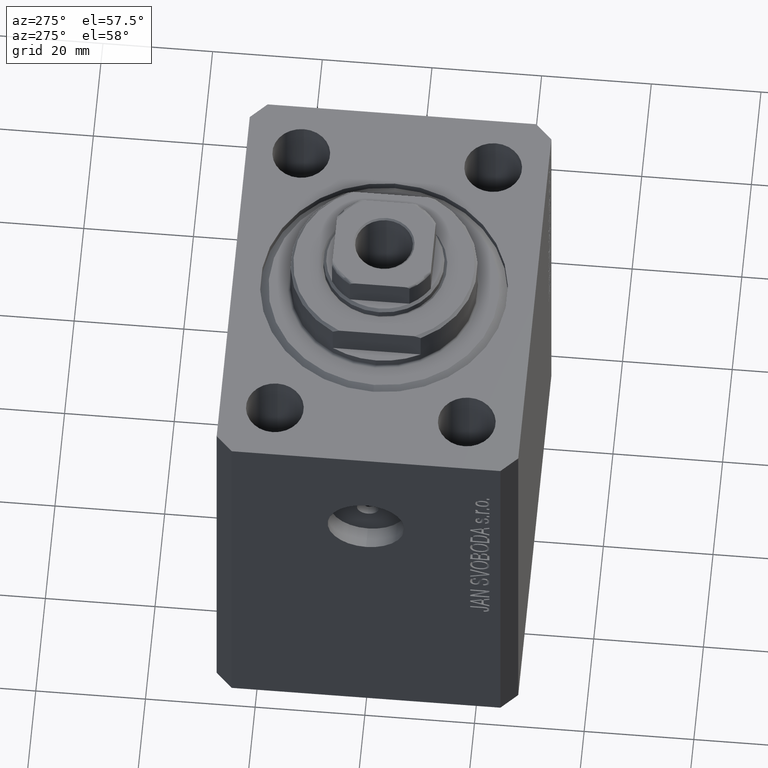
[diagram: clean part render]
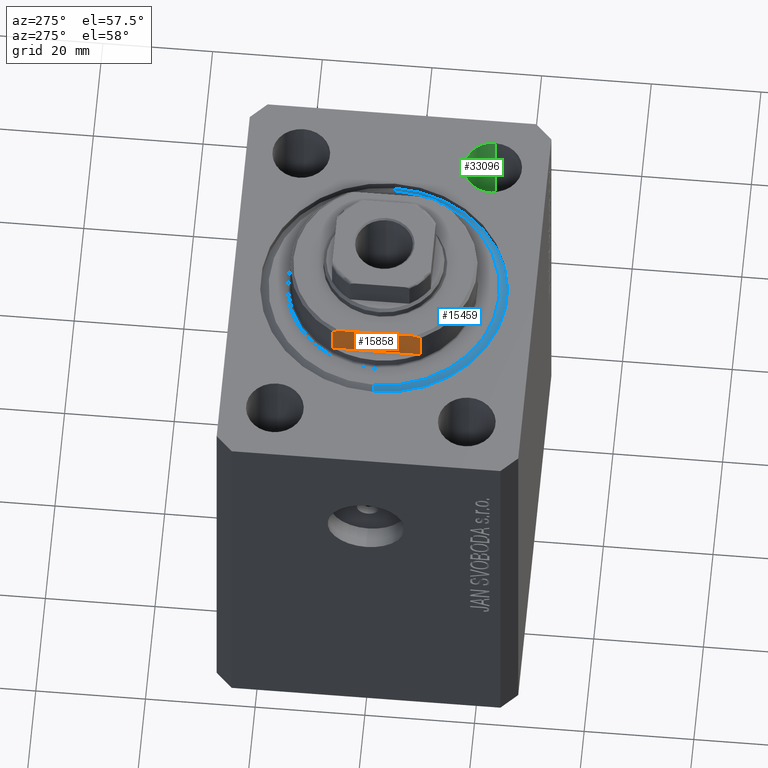
[diagram: same view with three faces highlighted in distinct colors, each labeled with its STEP entity id]
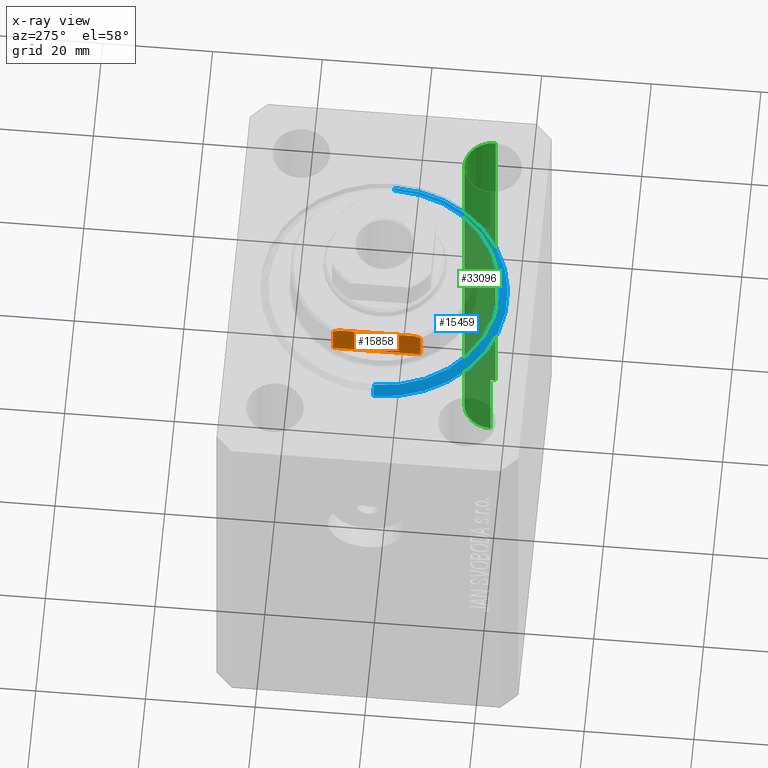
[diagram: x-ray of the same camera — body ghosted, the three highlighted faces saturated]
A machine part, auxiliary view with three faces highlighted in distinct colors.
The next image is the same camera in x-ray (body ghosted, the three faces saturated) — at least one of them is partly hidden behind the body in this view.
Their STEP definitions:

[orange] entity #15858 — the highlighted planar face has unit normal (-1, 0, 0).
#141 = CARTESIAN_POINT ( 'NONE',  ( 15.00000000000000000, 8.000000000000001776, -7.500000000000013323 ) ) ;
#179 = VERTEX_POINT ( 'NONE', #141 ) ;
#420 = CARTESIAN_POINT ( 'NONE',  ( 15.00000000000000000, 7.628315461082486593, -7.674910371255312391 ) ) ;
#977 = ORIENTED_EDGE ( 'NONE', *, *, #1656, .T. ) ;
#1656 = EDGE_CURVE ( 'NONE', #16343, #16949, #18860, .T. ) ;
#1791 = ORIENTED_EDGE ( 'NONE', *, *, #23207, .T. ) ;
#3189 = CARTESIAN_POINT ( 'NONE',  ( 15.00000000000000000, -7.629305121525818301, -7.674444648693746984 ) ) ;
#3849 = CARTESIAN_POINT ( 'NONE',  ( 15.00000000000000000, -8.000000000000001776, -7.500000000000013323 ) ) ;
#4587 = ORIENTED_EDGE ( 'NONE', *, *, #28101, .F. ) ;
#5342 = CARTESIAN_POINT ( 'NONE',  ( 14.99999999999999645, 6.873863542433781504, -8.000000000000000000 ) ) ;
#6887 = CARTESIAN_POINT ( 'NONE',  ( 15.00000000000000000, 8.000000000000001776, -8.000000000000000000 ) ) ;
#8330 = VECTOR ( 'NONE', #15443, 1000.000000000000000 ) ;
#9999 = CARTESIAN_POINT ( 'NONE',  ( 15.00000000000000000, -8.000000000000001776, -7.500000000000013323 ) ) ;
#11104 = B_SPLINE_CURVE_WITH_KNOTS ( 'NONE', 3,
 ( #20577, #420, #31643, #30761 ),
 .UNSPECIFIED., .F., .F.,
 ( 4, 4 ),
 ( 0.03336039268697044147, 0.03459498301323848946 ),
 .UNSPECIFIED. ) ;
#11271 = VERTEX_POINT ( 'NONE', #15265 ) ;
#12151 = LINE ( 'NONE', #32535, #37411 ) ;
#13092 = EDGE_CURVE ( 'NONE', #11271, #37322, #24025, .T. ) ;
#13605 = CARTESIAN_POINT ( 'NONE',  ( 14.99999999999999645, -6.873863542433781504, -8.000000000000000000 ) ) ;
#13620 = EDGE_CURVE ( 'NONE', #19787, #11271, #12151, .T. ) ;
#13740 = PLANE ( 'NONE',  #23748 ) ;
#14224 = EDGE_LOOP ( 'NONE', ( #1791, #977, #34429, #19730, #30660, #4587 ) ) ;
#15265 = CARTESIAN_POINT ( 'NONE',  ( 14.99999999999999645, -6.873863542433781504, -8.000000000000000000 ) ) ;
#15349 = CARTESIAN_POINT ( 'NONE',  ( 15.00000000000000000, -8.000000000000001776, -8.000000000000000000 ) ) ;
#15443 = DIRECTION ( 'NONE',  ( 0.000000000000000000, -1.000000000000000000, -0.000000000000000000 ) ) ;
#15858 = ADVANCED_FACE ( 'NONE', ( #27536 ), #13740, .T. ) ;
#16343 = VERTEX_POINT ( 'NONE', #24903 ) ;
#16949 = VERTEX_POINT ( 'NONE', #18868 ) ;
#18860 = LINE ( 'NONE', #33328, #8330 ) ;
#18868 = CARTESIAN_POINT ( 'NONE',  ( 14.99999999999999645, -8.000000000000003553, -2.000000000000000000 ) ) ;
#19730 = ORIENTED_EDGE ( 'NONE', *, *, #13092, .F. ) ;
#19787 = VERTEX_POINT ( 'NONE', #5342 ) ;
#20577 = CARTESIAN_POINT ( 'NONE',  ( 15.00000000000000000, 8.000000000000001776, -7.500000000000013323 ) ) ;
#22336 = DIRECTION ( 'NONE',  ( 0.000000000000000000, -1.000000000000000000, -0.000000000000000000 ) ) ;
#23207 = EDGE_CURVE ( 'NONE', #179, #16343, #37887, .T. ) ;
#23748 = AXIS2_PLACEMENT_3D ( 'NONE', #41320, #24133, #37939 ) ;
#24025 = B_SPLINE_CURVE_WITH_KNOTS ( 'NONE', 3,
 ( #13605, #40972, #3189, #9999 ),
 .UNSPECIFIED., .F., .F.,
 ( 4, 4 ),
 ( 0.04875332532859062012, 0.04998905627745663799 ),
 .UNSPECIFIED. ) ;
#24133 = DIRECTION ( 'NONE',  ( 1.000000000000000000, 0.000000000000000000, -0.000000000000000000 ) ) ;
#24903 = CARTESIAN_POINT ( 'NONE',  ( 14.99999999999999645, 8.000000000000003553, -2.000000000000000000 ) ) ;
#27536 = FACE_OUTER_BOUND ( 'NONE', #14224, .T. ) ;
#28101 = EDGE_CURVE ( 'NONE', #179, #19787, #11104, .T. ) ;
#30660 = ORIENTED_EDGE ( 'NONE', *, *, #13620, .F. ) ;
#30761 = CARTESIAN_POINT ( 'NONE',  ( 14.99999999999999645, 6.873863542433781504, -8.000000000000000000 ) ) ;
#31643 = CARTESIAN_POINT ( 'NONE',  ( 15.00000000000000000, 7.253126193285940104, -7.842000017654667587 ) ) ;
#32535 = CARTESIAN_POINT ( 'NONE',  ( 15.00000000000000000, -42.42640687119285303, -8.000000000000000000 ) ) ;
#33328 = CARTESIAN_POINT ( 'NONE',  ( 15.00000000000000000, -42.42640687119285303, -2.000000000000000000 ) ) ;
#34218 = EDGE_CURVE ( 'NONE', #16949, #37322, #42921, .T. ) ;
#34429 = ORIENTED_EDGE ( 'NONE', *, *, #34218, .T. ) ;
#34486 = DIRECTION ( 'NONE',  ( -0.000000000000000000, -0.000000000000000000, 1.000000000000000000 ) ) ;
#34660 = VECTOR ( 'NONE', #34486, 1000.000000000000000 ) ;
#37322 = VERTEX_POINT ( 'NONE', #3849 ) ;
#37411 = VECTOR ( 'NONE', #22336, 1000.000000000000000 ) ;
#37887 = LINE ( 'NONE', #6887, #34660 ) ;
#37939 = DIRECTION ( 'NONE',  ( -0.000000000000000000, 0.000000000000000000, -1.000000000000000000 ) ) ;
#40972 = CARTESIAN_POINT ( 'NONE',  ( 15.00000000000000000, -7.254193676168139149, -7.841555306644512058 ) ) ;
#41320 = CARTESIAN_POINT ( 'NONE',  ( 15.00000000000000000, -42.42640687119285303, -2.000000000000000000 ) ) ;
#42921 = LINE ( 'NONE', #15349, #43800 ) ;
#43800 = VECTOR ( 'NONE', #43829, 1000.000000000000000 ) ;
#43829 = DIRECTION ( 'NONE',  ( 0.000000000000000000, 0.000000000000000000, -1.000000000000000000 ) ) ;

[blue] entity #15459 — the highlighted conical surface has half-angle 45 deg.
#2062 = AXIS2_PLACEMENT_3D ( 'NONE', #18172, #28348, #31311 ) ;
#2216 = EDGE_CURVE ( 'NONE', #19890, #42078, #22698, .T. ) ;
#4304 = VECTOR ( 'NONE', #16313, 1000.000000000000114 ) ;
#4573 = FACE_OUTER_BOUND ( 'NONE', #33816, .T. ) ;
#5250 = DIRECTION ( 'NONE',  ( 1.000000000000000000, 0.000000000000000000, 0.000000000000000000 ) ) ;
#5437 = LINE ( 'NONE', #22416, #4304 ) ;
#6440 = CONICAL_SURFACE ( 'NONE', #2062, 22.50000000000000355, 0.7853981633974517207 ) ;
#6614 = ORIENTED_EDGE ( 'NONE', *, *, #2216, .F. ) ;
#7469 = ORIENTED_EDGE ( 'NONE', *, *, #42727, .T. ) ;
#7750 = CARTESIAN_POINT ( 'NONE',  ( 22.50000000000000355, 2.755455298081544383E-15, 1.500000000000039524 ) ) ;
#10687 = DIRECTION ( 'NONE',  ( -0.7071067811865500152, 8.659560562354962440E-17, 0.7071067811865451302 ) ) ;
#14961 = LINE ( 'NONE', #35544, #26722 ) ;
#15347 = AXIS2_PLACEMENT_3D ( 'NONE', #38968, #18848, #5250 ) ;
#15459 = ADVANCED_FACE ( 'NONE', ( #4573 ), #6440, .T. ) ;
#15500 = VERTEX_POINT ( 'NONE', #7750 ) ;
#16313 = DIRECTION ( 'NONE',  ( 0.7071067811865500152, 0.000000000000000000, 0.7071067811865451302 ) ) ;
#18172 = CARTESIAN_POINT ( 'NONE',  ( 0.000000000000000000, 0.000000000000000000, 1.500000000000039524 ) ) ;
#18240 = EDGE_CURVE ( 'NONE', #42078, #32531, #14961, .T. ) ;
#18848 = DIRECTION ( 'NONE',  ( -0.000000000000000000, -0.000000000000000000, 1.000000000000000000 ) ) ;
#19890 = VERTEX_POINT ( 'NONE', #22989 ) ;
#20181 = ORIENTED_EDGE ( 'NONE', *, *, #18240, .F. ) ;
#22416 = CARTESIAN_POINT ( 'NONE',  ( 22.50000000000000355, 0.000000000000000000, 1.500000000000039524 ) ) ;
#22474 = CARTESIAN_POINT ( 'NONE',  ( 0.000000000000000000, 0.000000000000000000, 0.000000000000000000 ) ) ;
#22698 = CIRCLE ( 'NONE', #28478, 20.99999999999995381 ) ;
#22917 = DIRECTION ( 'NONE',  ( 1.000000000000000000, 0.000000000000000000, 0.000000000000000000 ) ) ;
#22989 = CARTESIAN_POINT ( 'NONE',  ( 20.99999999999995381, 0.000000000000000000, 0.000000000000000000 ) ) ;
#25648 = DIRECTION ( 'NONE',  ( -0.000000000000000000, -0.000000000000000000, -1.000000000000000000 ) ) ;
#26670 = EDGE_CURVE ( 'NONE', #32531, #15500, #33416, .T. ) ;
#26722 = VECTOR ( 'NONE', #10687, 1000.000000000000114 ) ;
#28348 = DIRECTION ( 'NONE',  ( -0.000000000000000000, -0.000000000000000000, 1.000000000000000000 ) ) ;
#28478 = AXIS2_PLACEMENT_3D ( 'NONE', #22474, #25648, #22917 ) ;
#31311 = DIRECTION ( 'NONE',  ( 1.000000000000000000, 0.000000000000000000, 0.000000000000000000 ) ) ;
#32313 = CARTESIAN_POINT ( 'NONE',  ( -20.99999999999995381, 2.663606788145490261E-15, 0.000000000000000000 ) ) ;
#32531 = VERTEX_POINT ( 'NONE', #43892 ) ;
#33416 = CIRCLE ( 'NONE', #15347, 22.50000000000000355 ) ;
#33816 = EDGE_LOOP ( 'NONE', ( #20181, #6614, #7469, #43766 ) ) ;
#35544 = CARTESIAN_POINT ( 'NONE',  ( -22.50000000000000355, 2.755455298081545172E-15, 1.500000000000039524 ) ) ;
#38968 = CARTESIAN_POINT ( 'NONE',  ( 0.000000000000000000, 0.000000000000000000, 1.500000000000039524 ) ) ;
#42078 = VERTEX_POINT ( 'NONE', #32313 ) ;
#42727 = EDGE_CURVE ( 'NONE', #19890, #15500, #5437, .T. ) ;
#43766 = ORIENTED_EDGE ( 'NONE', *, *, #26670, .F. ) ;
#43892 = CARTESIAN_POINT ( 'NONE',  ( -22.50000000000000355, 0.000000000000000000, 1.500000000000039524 ) ) ;

[green] entity #33096 — the highlighted cylindrical surface (edge-blend (fillet) strip) has radius 5.25 mm, axis along (0, 0, 1).
#1614 = CARTESIAN_POINT ( 'NONE',  ( 27.49999999999999289, -17.50000000000000000, -80.00000000000000000 ) ) ;
#2764 = CARTESIAN_POINT ( 'NONE',  ( 32.74999999999999289, -17.50000000000000000, -94.84924240491750425 ) ) ;
#4672 = VERTEX_POINT ( 'NONE', #43955 ) ;
#5048 = ORIENTED_EDGE ( 'NONE', *, *, #32354, .T. ) ;
#6092 = EDGE_LOOP ( 'NONE', ( #22105, #5048, #29864, #13553 ) ) ;
#6256 = CIRCLE ( 'NONE', #38042, 5.250000000000000888 ) ;
#11251 = CARTESIAN_POINT ( 'NONE',  ( 32.74999999999999289, -17.50000000000000000, 0.000000000000000000 ) ) ;
#12290 = EDGE_CURVE ( 'NONE', #4672, #42395, #12544, .T. ) ;
#12544 = LINE ( 'NONE', #33595, #30176 ) ;
#12714 = AXIS2_PLACEMENT_3D ( 'NONE', #1614, #36229, #39831 ) ;
#13553 = ORIENTED_EDGE ( 'NONE', *, *, #33509, .T. ) ;
#18099 = DIRECTION ( 'NONE',  ( 0.000000000000000000, 0.000000000000000000, 1.000000000000000000 ) ) ;
#19827 = FACE_OUTER_BOUND ( 'NONE', #6092, .T. ) ;
#19963 = CIRCLE ( 'NONE', #12714, 5.250000000000000888 ) ;
#20162 = VECTOR ( 'NONE', #43702, 1000.000000000000000 ) ;
#20947 = DIRECTION ( 'NONE',  ( -0.000000000000000000, -0.000000000000000000, 1.000000000000000000 ) ) ;
#21684 = EDGE_CURVE ( 'NONE', #30076, #30443, #37161, .T. ) ;
#22105 = ORIENTED_EDGE ( 'NONE', *, *, #12290, .F. ) ;
#22735 = CARTESIAN_POINT ( 'NONE',  ( 22.24999999999999289, -17.50000000000000000, 0.000000000000000000 ) ) ;
#24661 = CARTESIAN_POINT ( 'NONE',  ( 27.49999999999999289, -17.50000000000000000, 0.000000000000000000 ) ) ;
#25103 = CARTESIAN_POINT ( 'NONE',  ( 32.74999999999999289, -17.50000000000000000, -80.00000000000000000 ) ) ;
#27056 = CARTESIAN_POINT ( 'NONE',  ( 27.49999999999999289, -17.50000000000000000, -94.84924240491750425 ) ) ;
#29864 = ORIENTED_EDGE ( 'NONE', *, *, #21684, .T. ) ;
#30076 = VERTEX_POINT ( 'NONE', #25103 ) ;
#30176 = VECTOR ( 'NONE', #36763, 1000.000000000000000 ) ;
#30443 = VERTEX_POINT ( 'NONE', #11251 ) ;
#31890 = DIRECTION ( 'NONE',  ( 1.000000000000000000, 0.000000000000000000, 0.000000000000000000 ) ) ;
#32354 = EDGE_CURVE ( 'NONE', #4672, #30076, #19963, .T. ) ;
#33096 = ADVANCED_FACE ( 'NONE', ( #19827 ), #44018, .F. ) ;
#33509 = EDGE_CURVE ( 'NONE', #30443, #42395, #6256, .T. ) ;
#33595 = CARTESIAN_POINT ( 'NONE',  ( 22.24999999999999289, -17.50000000000000000, -94.84924240491750425 ) ) ;
#36229 = DIRECTION ( 'NONE',  ( -0.000000000000000000, -0.000000000000000000, -1.000000000000000000 ) ) ;
#36763 = DIRECTION ( 'NONE',  ( -0.000000000000000000, -0.000000000000000000, 1.000000000000000000 ) ) ;
#37161 = LINE ( 'NONE', #2764, #20162 ) ;
#38042 = AXIS2_PLACEMENT_3D ( 'NONE', #24661, #18099, #31890 ) ;
#38760 = AXIS2_PLACEMENT_3D ( 'NONE', #27056, #20947, #44682 ) ;
#39831 = DIRECTION ( 'NONE',  ( 1.000000000000000000, 0.000000000000000000, 0.000000000000000000 ) ) ;
#42395 = VERTEX_POINT ( 'NONE', #22735 ) ;
#43702 = DIRECTION ( 'NONE',  ( -0.000000000000000000, -0.000000000000000000, 1.000000000000000000 ) ) ;
#43955 = CARTESIAN_POINT ( 'NONE',  ( 22.24999999999999289, -17.50000000000000000, -80.00000000000000000 ) ) ;
#44018 = CYLINDRICAL_SURFACE ( 'NONE', #38760, 5.250000000000000888 ) ;
#44682 = DIRECTION ( 'NONE',  ( 1.000000000000000000, 0.000000000000000000, 0.000000000000000000 ) ) ;